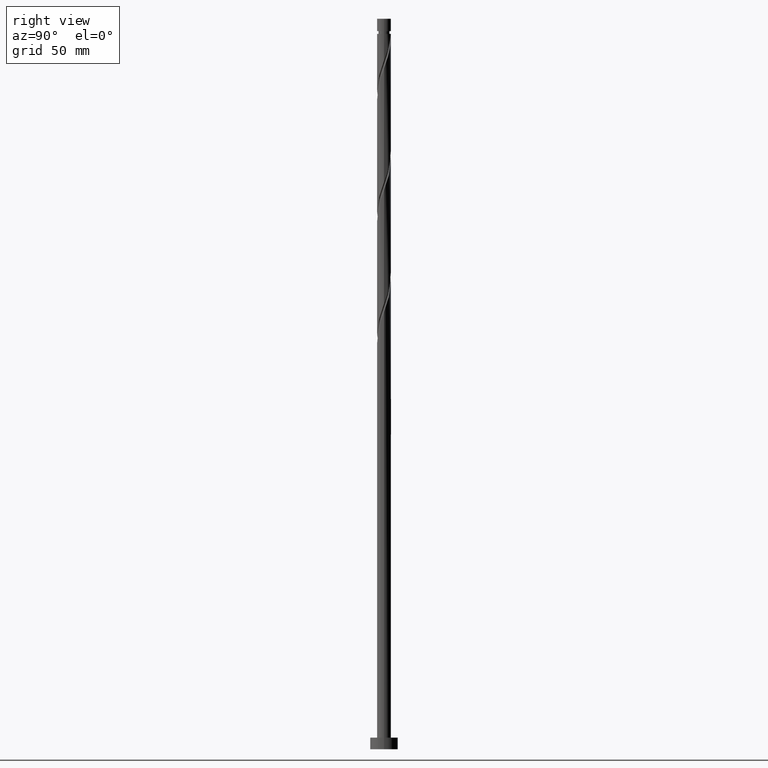
[diagram: clean part render]
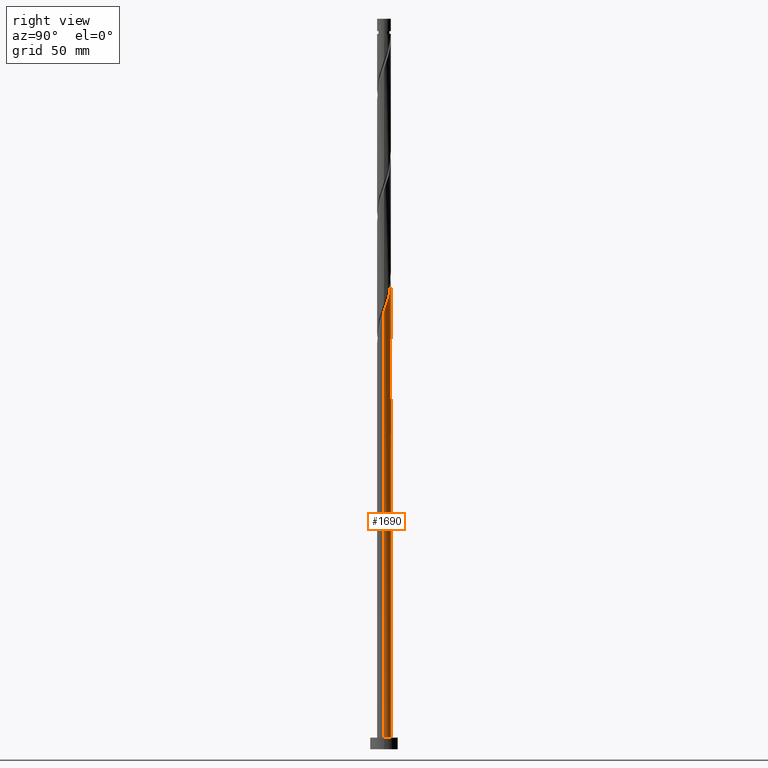
[diagram: same view with one face highlighted and labeled with its STEP entity id]
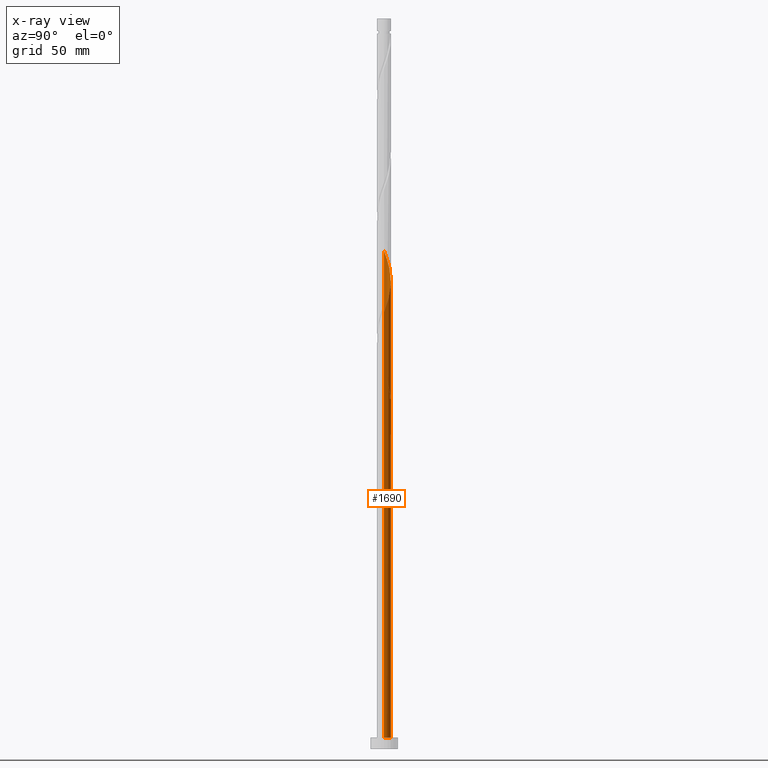
[diagram: x-ray of the same camera — body ghosted, the highlighted face saturated]
A machine part, right view. The second image highlights one B-rep face of the part: STEP entity #1690.
The next image is the same camera in x-ray: the body ghosted, the highlighted face saturated — about 0% of this face is hidden behind the body in this view.
In plain terms, the highlighted cylindrical surface (edge-blend (fillet) strip) has radius 3 mm, axis along (-0, -0, -1).
Its self-contained STEP definition (entity closure, byte-faithful):
#21 = CYLINDRICAL_SURFACE ( 'NONE', #340, 3.000000000000000444 ) ;
#37 = DIRECTION ( 'NONE',  ( -0.000000000000000000, -0.000000000000000000, -1.000000000000000000 ) ) ;
#39 = CARTESIAN_POINT ( 'NONE',  ( -0.07218693100826203968, 2.999131382082419695, 152.8673766958958140 ) ) ;
#41 = CARTESIAN_POINT ( 'NONE',  ( 3.000000000000005329, 0.3015113445777658496, 189.5311306969533121 ) ) ;
#42 = VERTEX_POINT ( 'NONE', #710 ) ;
#74 = CARTESIAN_POINT ( 'NONE',  ( 0.07218693100826345521, 2.999131382082424135, 201.6173766958957572 ) ) ;
#84 = CARTESIAN_POINT ( 'NONE',  ( 0.2657340189576474221, 3.007264895821487372, 151.9298766958957856 ) ) ;
#108 = EDGE_CURVE ( 'NONE', #310, #701, #138, .T. ) ;
#137 = DIRECTION ( 'NONE',  ( 0.000000000000000000, -0.000000000000000000, -1.000000000000000000 ) ) ;
#138 = LINE ( 'NONE', #877, #809 ) ;
#162 = CARTESIAN_POINT ( 'NONE',  ( -2.939999999999999503, 0.5969924622639740663, 164.1173766958957572 ) ) ;
#165 = EDGE_CURVE ( 'NONE', #42, #1030, #1238, .T. ) ;
#183 = CARTESIAN_POINT ( 'NONE',  ( -2.185491920847150382, 2.082758216016308950, 159.4298766958957856 ) ) ;
#189 = AXIS2_PLACEMENT_3D ( 'NONE', #1577, #1744, #1592 ) ;
#194 = CARTESIAN_POINT ( 'NONE',  ( -2.299807519258761701, 1.926365846447888552, 209.1173766958957856 ) ) ;
#212 = ORIENTED_EDGE ( 'NONE', *, *, #165, .F. ) ;
#244 = CARTESIAN_POINT ( 'NONE',  ( 0.5969924622639746215, 2.939999999999999503, 150.9923766958957856 ) ) ;
#249 = CARTESIAN_POINT ( 'NONE',  ( -3.000000000000000444, 0.000000000000000000, 315.0000000000000000 ) ) ;
#266 = AXIS2_PLACEMENT_3D ( 'NONE', #616, #137, #480 ) ;
#281 = CARTESIAN_POINT ( 'NONE',  ( -0.9282509055703012102, 2.872735104178516075, 151.9298766958957572 ) ) ;
#295 = CARTESIAN_POINT ( 'NONE',  ( -2.990997868343357791, 0.4101078809741728892, 161.3048766958957572 ) ) ;
#304 = CARTESIAN_POINT ( 'NONE',  ( -2.999999999999999112, 1.735121171877397513E-15, 165.7918937738018315 ) ) ;
#310 = VERTEX_POINT ( 'NONE', #1326 ) ;
#318 = CARTESIAN_POINT ( 'NONE',  ( -2.824749718427056244, 1.065385259292571662, 159.4298766958958424 ) ) ;
#320 = ORIENTED_EDGE ( 'NONE', *, *, #1171, .F. ) ;
#325 = CARTESIAN_POINT ( 'NONE',  ( -1.667239772048619395, 2.516856822501207347, 157.5548766958958424 ) ) ;
#329 = CARTESIAN_POINT ( 'NONE',  ( -2.670803270464134016, 1.366312515670596639, 158.4923766958957856 ) ) ;
#336 = CARTESIAN_POINT ( 'NONE',  ( -0.5969924622639735112, 2.940000000000004832, 203.4923766958957572 ) ) ;
#340 = AXIS2_PLACEMENT_3D ( 'NONE', #1239, #37, #1806 ) ;
#346 =( BOUNDED_CURVE ( )  B_SPLINE_CURVE ( 2, ( #991, #41, #1120, #1549, #1833, #1252, #832, #1381, #1391, #1850, #1566, #652, #824, #1402, #74, #1675, #336, #682, #507, #1860, #954, #1532, #194, #1104, #974, #540, #805, #348, #963, #1538, #1842 ),
 .UNSPECIFIED., .F., .T. ) 
 B_SPLINE_CURVE_WITH_KNOTS ( ( 3, 2, 2, 2, 2, 2, 2, 2, 2, 2, 2, 2, 2, 2, 2, 3 ),
 ( 0.1795303401299221113, 0.1875000000000000000, 0.1964285714285713969, 0.2053571428571429047, 0.2142857142857143016, 0.2232142857142856984, 0.2321428571428570953, 0.2410714285714286031, 0.2500000000000000000, 0.2589285714285713969, 0.2678571428571429047, 0.2767857142857143016, 0.2857142857142856984, 0.2946428571428570953, 0.3035714285714286031, 0.3045303401299219170 ),
 .UNSPECIFIED. ) 
 CURVE ( )  GEOMETRIC_REPRESENTATION_ITEM ( )  RATIONAL_B_SPLINE_CURVE ( ( 0.9079949616362198439, 0.9039886423360827816, 0.9090909090909496948, 0.9033747362666244562, 0.9090909090909496948, 0.9033747362666244562, 0.9090909090909496948, 0.9033747362666244562, 0.9090909090909496948, 0.9033747362666244562, 0.9090909090909496948, 0.9033747362666244562, 0.9090909090909496948, 0.9033747362666244562, 0.9090909090909496948, 0.9033747362666244562, 0.9090909090909496948, 0.9033747362666244562, 0.9090909090909496948, 0.9033747362666244562, 0.9090909090909496948, 0.9033747362666244562, 0.9090909090909496948, 0.9033747362666244562, 0.9090909090909496948, 0.9033747362666244562, 0.9090909090909496948, 0.9033747362666244562, 0.9090909090909496948, 0.9084770030214915915, 0.9079949616362199549 ) ) 
 REPRESENTATION_ITEM ( '' )  );
#348 = CARTESIAN_POINT ( 'NONE',  ( -2.990997868343357791, 0.4101078809741728892, 213.8048766958958424 ) ) ;
#400 = VERTEX_POINT ( 'NONE', #1247 ) ;
#409 = CARTESIAN_POINT ( 'NONE',  ( -3.000000000000004885, -9.253979583346051568E-16, 214.9428596179897397 ) ) ;
#420 = ORIENTED_EDGE ( 'NONE', *, *, #108, .T. ) ;
#442 = CARTESIAN_POINT ( 'NONE',  ( -2.999131382082424135, 0.07218693100826283071, 162.2423766958957572 ) ) ;
#472 = ORIENTED_EDGE ( 'NONE', *, *, #802, .F. ) ;
#480 = DIRECTION ( 'NONE',  ( -1.000000000000000000, 0.000000000000000000, 0.000000000000000000 ) ) ;
#482 = ORIENTED_EDGE ( 'NONE', *, *, #488, .F. ) ;
#488 = EDGE_CURVE ( 'NONE', #310, #592, #346, .T. ) ;
#497 = CARTESIAN_POINT ( 'NONE',  ( -1.926365846447885222, 2.299807519258758148, 158.4923766958958140 ) ) ;
#507 = CARTESIAN_POINT ( 'NONE',  ( -1.236236160654867522, 2.733444741546705359, 205.3673766958957856 ) ) ;
#540 = CARTESIAN_POINT ( 'NONE',  ( -2.824749718427056244, 1.065385259292571662, 211.9298766958957572 ) ) ;
#571 = CARTESIAN_POINT ( 'NONE',  ( -3.000000000000004885, -9.253979583346051568E-16, 162.4428596179897397 ) ) ;
#592 = VERTEX_POINT ( 'NONE', #409 ) ;
#616 = CARTESIAN_POINT ( 'NONE',  ( 0.000000000000000000, 0.000000000000000000, 150.9923766958957856 ) ) ;
#629 = DIRECTION ( 'NONE',  ( -0.000000000000000000, -0.000000000000000000, -1.000000000000000000 ) ) ;
#648 = CARTESIAN_POINT ( 'NONE',  ( -0.5969924622639736222, 2.940000000000004832, 150.9923766958957856 ) ) ;
#651 = CARTESIAN_POINT ( 'NONE',  ( -2.872735104178511634, 0.9282509055703005441, 163.1798766958958993 ) ) ;
#652 = CARTESIAN_POINT ( 'NONE',  ( 1.065385259292572551, 2.824749718427055800, 198.8048766958958424 ) ) ;
#682 = CARTESIAN_POINT ( 'NONE',  ( -0.9282509055703012102, 2.872735104178516075, 204.4298766958957856 ) ) ;
#684 = VERTEX_POINT ( 'NONE', #1426 ) ;
#701 = VERTEX_POINT ( 'NONE', #1295 ) ;
#710 = CARTESIAN_POINT ( 'NONE',  ( -0.5969924622639736222, 2.940000000000004388, 150.9923766958957856 ) ) ;
#793 = CARTESIAN_POINT ( 'NONE',  ( -0.4101078809741716680, 2.990997868343353350, 153.8048766958957856 ) ) ;
#802 = EDGE_CURVE ( 'NONE', #1030, #684, #847, .T. ) ;
#805 = CARTESIAN_POINT ( 'NONE',  ( -2.907873793385205907, 0.7377465701333723036, 212.8673766958957287 ) ) ;
#809 = VECTOR ( 'NONE', #1308, 1000.000000000000000 ) ;
#824 = CARTESIAN_POINT ( 'NONE',  ( 0.7377465701333726367, 2.907873793385205907, 199.7423766958957856 ) ) ;
#825 = EDGE_LOOP ( 'NONE', ( #482, #420, #916, #472, #212, #1476, #1114, #320 ) ) ;
#832 = CARTESIAN_POINT ( 'NONE',  ( 2.389823149881026065, 1.813489815877872502, 194.1173766958957572 ) ) ;
#847 = LINE ( 'NONE', #249, #1694 ) ;
#877 = CARTESIAN_POINT ( 'NONE',  ( 3.000000000000000444, 3.673940397442060361E-16, 315.0000000000000000 ) ) ;
#888 = CARTESIAN_POINT ( 'NONE',  ( -3.000000000000000444, 0.000000000000000000, 315.0000000000000000 ) ) ;
#912 = CARTESIAN_POINT ( 'NONE',  ( -2.516856822501210900, 1.667239772048622060, 157.5548766958957856 ) ) ;
#916 = ORIENTED_EDGE ( 'NONE', *, *, #1573, .T. ) ;
#922 = CARTESIAN_POINT ( 'NONE',  ( -2.999999999999997335, 0.3015113445777739543, 164.9536226948382023 ) ) ;
#925 = CARTESIAN_POINT ( 'NONE',  ( -2.907873793385205907, 0.7377465701333723036, 160.3673766958957856 ) ) ;
#939 = EDGE_CURVE ( 'NONE', #400, #1014, #977, .T. ) ;
#944 = CARTESIAN_POINT ( 'NONE',  ( -1.366312515670593752, 2.670803270464129575, 156.6173766958958140 ) ) ;
#954 = CARTESIAN_POINT ( 'NONE',  ( -1.813489815877872946, 2.389823149881026065, 207.2423766958957856 ) ) ;
#963 = CARTESIAN_POINT ( 'NONE',  ( -2.999131382082424135, 0.07218693100826283071, 214.7423766958957572 ) ) ;
#974 = CARTESIAN_POINT ( 'NONE',  ( -2.670803270464134016, 1.366312515670596639, 210.9923766958957003 ) ) ;
#977 =( BOUNDED_CURVE ( )  B_SPLINE_CURVE ( 2, ( #304, #922, #162, #651, #1232, #1824, #1667, #183, #497, #325, #944, #1367, #1520, #793, #39, #84, #1906 ),
 .UNSPECIFIED., .F., .T. ) 
 B_SPLINE_CURVE_WITH_KNOTS ( ( 3, 2, 2, 2, 2, 2, 2, 2, 3 ),
 ( 0.9295303401299223056, 0.9375000000000000000, 0.9464285714285713969, 0.9553571428571429047, 0.9642857142857143016, 0.9732142857142856984, 0.9821428571428570953, 0.9910714285714286031, 1.000000000000000000 ),
 .UNSPECIFIED. ) 
 CURVE ( )  GEOMETRIC_REPRESENTATION_ITEM ( )  RATIONAL_B_SPLINE_CURVE ( ( 0.9079949616362125164, 0.9039886423360760093, 0.9090909090909428114, 0.9033747362666175729, 0.9090909090909428114, 0.9033747362666175729, 0.9090909090909428114, 0.9033747362666175729, 0.9090909090909428114, 0.9033747362666175729, 0.9090909090909428114, 0.9033747362666175729, 0.9090909090909428114, 0.9033747362666175729, 0.9090909090909428114, 0.9033747362666175729, 0.9090909090909428114 ) ) 
 REPRESENTATION_ITEM ( '' )  );
#991 = CARTESIAN_POINT ( 'NONE',  ( 3.000000000000004885, 5.783737239591282970E-16, 188.6928596179897397 ) ) ;
#1014 = VERTEX_POINT ( 'NONE', #244 ) ;
#1030 = VERTEX_POINT ( 'NONE', #571 ) ;
#1043 = VECTOR ( 'NONE', #629, 1000.000000000000000 ) ;
#1079 = CARTESIAN_POINT ( 'NONE',  ( -2.082758216016311614, 2.185491920847153935, 155.6798766958958140 ) ) ;
#1104 = CARTESIAN_POINT ( 'NONE',  ( -2.516856822501210900, 1.667239772048622060, 210.0548766958957572 ) ) ;
#1114 = ORIENTED_EDGE ( 'NONE', *, *, #939, .F. ) ;
#1120 = CARTESIAN_POINT ( 'NONE',  ( 2.940000000000004832, 0.5969924622639736222, 190.3673766958957856 ) ) ;
#1149 = EDGE_CURVE ( 'NONE', #42, #1014, #1224, .T. ) ;
#1171 = EDGE_CURVE ( 'NONE', #592, #400, #1182, .T. ) ;
#1182 = LINE ( 'NONE', #888, #1043 ) ;
#1224 = CIRCLE ( 'NONE', #266, 3.000000000000000444 ) ;
#1232 = CARTESIAN_POINT ( 'NONE',  ( -2.733444741546700918, 1.236236160654866412, 162.2423766958958140 ) ) ;
#1238 =( BOUNDED_CURVE ( )  B_SPLINE_CURVE ( 2, ( #648, #281, #1669, #1349, #1662, #1079, #1775, #912, #329, #318, #925, #295, #442, #1820, #1810 ),
 .UNSPECIFIED., .F., .T. ) 
 B_SPLINE_CURVE_WITH_KNOTS ( ( 3, 2, 2, 2, 2, 2, 2, 3 ),
 ( 0.000000000000000000, 0.008928571428571396851, 0.01785714285714290472, 0.02678571428571430157, 0.03571428571428569843, 0.04464285714285709528, 0.05357142857142860315, 0.05453034012992218765 ),
 .UNSPECIFIED. ) 
 CURVE ( )  GEOMETRIC_REPRESENTATION_ITEM ( )  RATIONAL_B_SPLINE_CURVE ( ( 0.9090909090909496948, 0.9033747362666244562, 0.9090909090909496948, 0.9033747362666244562, 0.9090909090909496948, 0.9033747362666244562, 0.9090909090909496948, 0.9033747362666244562, 0.9090909090909496948, 0.9033747362666244562, 0.9090909090909496948, 0.9033747362666244562, 0.9090909090909496948, 0.9084770030214913694, 0.9079949616362196219 ) ) 
 REPRESENTATION_ITEM ( '' )  );
#1239 = CARTESIAN_POINT ( 'NONE',  ( 0.000000000000000000, 0.000000000000000000, 315.0000000000000000 ) ) ;
#1247 = CARTESIAN_POINT ( 'NONE',  ( -2.999999999999999112, 1.735121171877397513E-15, 165.7918937738018030 ) ) ;
#1252 = CARTESIAN_POINT ( 'NONE',  ( 2.594154378914896419, 1.544221415739433834, 193.1798766958958424 ) ) ;
#1295 = CARTESIAN_POINT ( 'NONE',  ( 3.000000000000000444, 3.673940397442060361E-16, 5.000000000000000000 ) ) ;
#1308 = DIRECTION ( 'NONE',  ( -0.000000000000000000, -0.000000000000000000, -1.000000000000000000 ) ) ;
#1326 = CARTESIAN_POINT ( 'NONE',  ( 3.000000000000004885, 5.783737239591282970E-16, 188.6928596179897397 ) ) ;
#1346 = FACE_OUTER_BOUND ( 'NONE', #825, .T. ) ;
#1349 = CARTESIAN_POINT ( 'NONE',  ( -1.544221415739434500, 2.594154378914895975, 153.8048766958957856 ) ) ;
#1367 = CARTESIAN_POINT ( 'NONE',  ( -1.065385259292569664, 2.824749718427051803, 155.6798766958958424 ) ) ;
#1381 = CARTESIAN_POINT ( 'NONE',  ( 2.185491920847153935, 2.082758216016311170, 195.0548766958957572 ) ) ;
#1391 = CARTESIAN_POINT ( 'NONE',  ( 1.926365846447888552, 2.299807519258761257, 195.9923766958957572 ) ) ;
#1402 = CARTESIAN_POINT ( 'NONE',  ( 0.4101078809741735554, 2.990997868343357347, 200.6798766958957572 ) ) ;
#1416 = DIRECTION ( 'NONE',  ( -0.000000000000000000, -0.000000000000000000, -1.000000000000000000 ) ) ;
#1426 = CARTESIAN_POINT ( 'NONE',  ( -3.000000000000000444, 0.000000000000000000, 5.000000000000000000 ) ) ;
#1476 = ORIENTED_EDGE ( 'NONE', *, *, #1149, .T. ) ;
#1520 = CARTESIAN_POINT ( 'NONE',  ( -0.7377465701333704162, 2.907873793385202355, 154.7423766958958140 ) ) ;
#1532 = CARTESIAN_POINT ( 'NONE',  ( -2.082758216016311614, 2.185491920847153935, 208.1798766958958140 ) ) ;
#1538 = CARTESIAN_POINT ( 'NONE',  ( -3.000000000000004885, 0.03609869149917679237, 214.8424969297646498 ) ) ;
#1549 = CARTESIAN_POINT ( 'NONE',  ( 2.872735104178516075, 0.9282509055703006551, 191.3048766958957287 ) ) ;
#1566 = CARTESIAN_POINT ( 'NONE',  ( 1.366312515670597083, 2.670803270464133128, 197.8673766958957287 ) ) ;
#1573 = EDGE_CURVE ( 'NONE', #701, #684, #1867, .T. ) ;
#1577 = CARTESIAN_POINT ( 'NONE',  ( 0.000000000000000000, 0.000000000000000000, 5.000000000000000000 ) ) ;
#1592 = DIRECTION ( 'NONE',  ( 1.000000000000000000, 0.000000000000000000, 0.000000000000000000 ) ) ;
#1662 = CARTESIAN_POINT ( 'NONE',  ( -1.813489815877872946, 2.389823149881026065, 154.7423766958958140 ) ) ;
#1667 = CARTESIAN_POINT ( 'NONE',  ( -2.389823149881021180, 1.813489815877871170, 160.3673766958957856 ) ) ;
#1669 = CARTESIAN_POINT ( 'NONE',  ( -1.236236160654867522, 2.733444741546705359, 152.8673766958957856 ) ) ;
#1675 = CARTESIAN_POINT ( 'NONE',  ( -0.2657340189576467004, 3.007264895821493145, 202.5548766958957856 ) ) ;
#1690 = ADVANCED_FACE ( 'NONE', ( #1346 ), #21, .T. ) ;
#1694 = VECTOR ( 'NONE', #1416, 1000.000000000000000 ) ;
#1744 = DIRECTION ( 'NONE',  ( 0.000000000000000000, 0.000000000000000000, 1.000000000000000000 ) ) ;
#1775 = CARTESIAN_POINT ( 'NONE',  ( -2.299807519258761701, 1.926365846447888552, 156.6173766958957856 ) ) ;
#1806 = DIRECTION ( 'NONE',  ( -1.000000000000000000, 0.000000000000000000, 0.000000000000000000 ) ) ;
#1810 = CARTESIAN_POINT ( 'NONE',  ( -3.000000000000004885, -9.253979583346051568E-16, 162.4428596179897397 ) ) ;
#1820 = CARTESIAN_POINT ( 'NONE',  ( -3.000000000000005329, 0.03609869149916659220, 162.3424969297646498 ) ) ;
#1824 = CARTESIAN_POINT ( 'NONE',  ( -2.594154378914891979, 1.544221415739432723, 161.3048766958957856 ) ) ;
#1833 = CARTESIAN_POINT ( 'NONE',  ( 2.733444741546705803, 1.236236160654866634, 192.2423766958957287 ) ) ;
#1842 = CARTESIAN_POINT ( 'NONE',  ( -3.000000000000004885, -9.253979583346051568E-16, 214.9428596179897397 ) ) ;
#1850 = CARTESIAN_POINT ( 'NONE',  ( 1.667239772048622726, 2.516856822501210900, 196.9298766958957287 ) ) ;
#1860 = CARTESIAN_POINT ( 'NONE',  ( -1.544221415739434500, 2.594154378914895975, 206.3048766958957856 ) ) ;
#1867 = CIRCLE ( 'NONE', #189, 3.000000000000000444 ) ;
#1906 = CARTESIAN_POINT ( 'NONE',  ( 0.5969924622639747325, 2.939999999999999503, 150.9923766958957856 ) ) ;